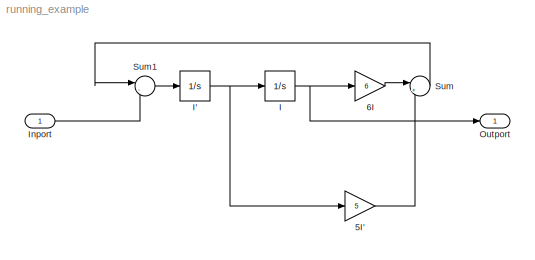
MODEL running_example
KIND model
BLOCK [Gain] 5I'
  Gain = 5
  SID = 1
BLOCK [Gain] 6I
  Gain = 6
  SID = 2
BLOCK [Integrator] I
  InitialCondition = 1
  Ports = [1, 1]
  SID = 4
BLOCK [Integrator] I'
  InitialCondition = 5
  Ports = [1, 1]
  SID = 5
BLOCK [Inport] Inport
  IconDisplay = Port number
  SID = 12
BLOCK [Outport] Outport
  IconDisplay = Port number
  SID = 10
BLOCK [Sum] Sum
  IconShape = round
  InputSameDT = off
  Inputs = |++
  OutDataTypeStr = Inherit: Inherit via internal rule
  Ports = [2, 1]
  SID = 7
BLOCK [Sum] Sum1
  IconShape = round
  InputSameDT = off
  Inputs = |-+
  OutDataTypeStr = Inherit: Inherit via internal rule
  Ports = [2, 1]
  SID = 8
LINE 5I':1 -> Sum:2
LINE 6I:1 -> Sum:1
NET I':1 -> 5I':1, I:1
NET I:1 -> 6I:1, Outport:1
LINE Inport:1 -> Sum1:2
LINE Sum1:1 -> I':1
LINE Sum:1 -> Sum1:1
note: NET lines group one-source signal fan-out (src -> all destinations, sorted); 1:1 wires keep LINE
